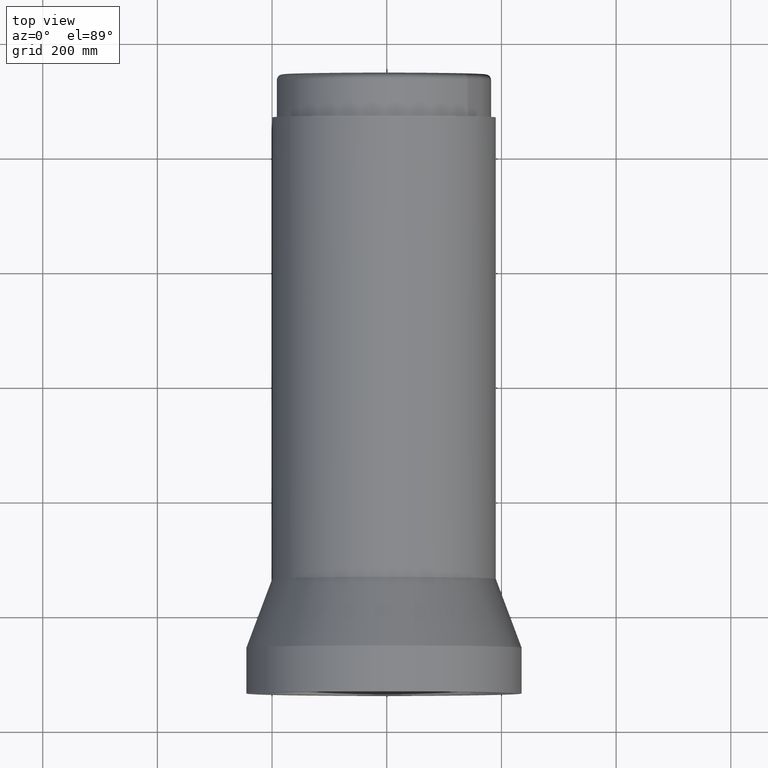
[diagram: clean part render]
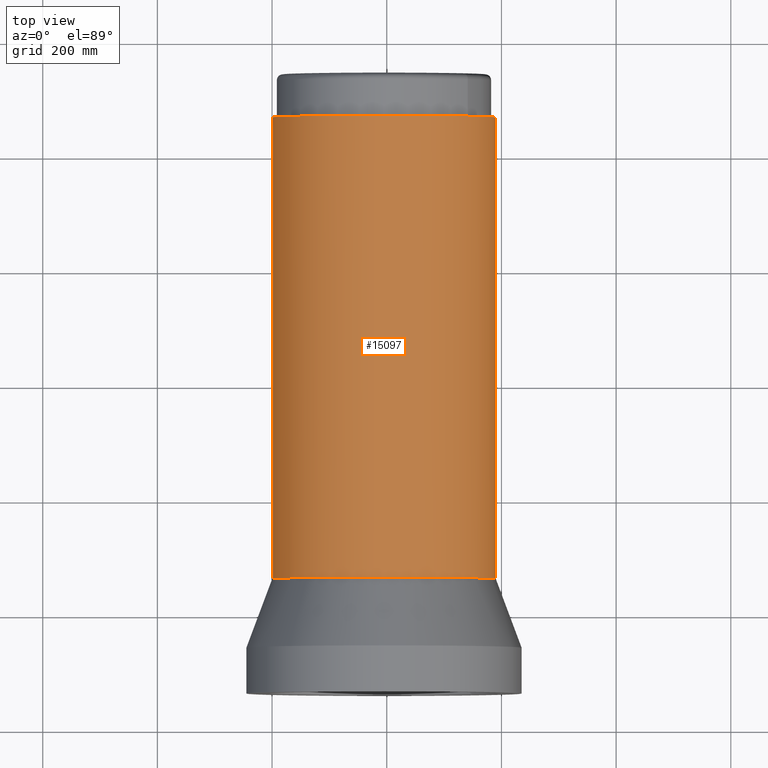
[diagram: same view with one face highlighted and labeled with its STEP entity id]
A machine part, top view. The second image highlights one B-rep face of the part: STEP entity #15097.
In plain terms, the highlighted face is a freeform B-spline surface patch.
Its self-contained STEP definition (entity closure, byte-faithful):
#12 = VERTEX_POINT ( 'NONE', #9011 ) ;
#44 = VERTEX_POINT ( 'NONE', #7015 ) ;
#60 = CARTESIAN_POINT ( 'NONE',  ( 193.3351085645446403, -25.53727302610858985, 119.9986782188536552 ) ) ;
#107 = CARTESIAN_POINT ( 'NONE',  ( 162.2377160660146558, -108.1854364932719363, 656.6663742804423691 ) ) ;
#284 = DIRECTION ( 'NONE',  ( -0.0000000000000000000, -0.0000000000000000000, -1.000000000000000000 ) ) ;
#288 = ORIENTED_EDGE ( 'NONE', *, *, #22798, .F. ) ;
#303 = CARTESIAN_POINT ( 'NONE',  ( -194.9999999999998863, -12.92493471206324251, 925.0000000000000000 ) ) ;
#335 = CARTESIAN_POINT ( 'NONE',  ( 169.3069428533937071, -97.58385061509292768, 925.0000000000000000 ) ) ;
#389 = CARTESIAN_POINT ( 'NONE',  ( 174.4137228824091324, -87.27570991755793273, 924.9999999999998863 ) ) ;
#391 = EDGE_CURVE ( 'NONE', #15020, #14075, #15054, .T. ) ;
#427 = EDGE_CURVE ( 'NONE', #14269, #20295, #3210, .T. ) ;
#430 = CARTESIAN_POINT ( 'NONE',  ( 25.51344762909901931, -193.3277596482296019, 119.9986901020441223 ) ) ;
#454 = CARTESIAN_POINT ( 'NONE',  ( 180.1562102967610883, -74.62314565065774730, 656.6663742804423691 ) ) ;
#509 = CARTESIAN_POINT ( 'NONE',  ( 90.36183959410642785, -172.8084356677540825, 924.9999999999995453 ) ) ;
#569 = CARTESIAN_POINT ( 'NONE',  ( 8.262826192151354737E-14, -194.9999999999998863, 119.9991228413271358 ) ) ;
#625 = CARTESIAN_POINT ( 'NONE',  ( 185.1464681176478280, -61.59100080165283941, 925.0000000000000000 ) ) ;
#687 = CARTESIAN_POINT ( 'NONE',  ( 1.140249082911127494E-13, -194.9999999999998863, 388.3327485608847383 ) ) ;
#714 = EDGE_LOOP ( 'NONE', ( #23321, #12299, #6399, #1229, #10354, #19353, #7367, #17252, #8752, #11295, #1420, #23147, #10731, #14768, #1814, #10219, #16823, #3656, #4052, #9910, #1766, #5776, #11611, #3314, #1400, #288 ) ) ;
#716 = B_SPLINE_CURVE_WITH_KNOTS ( 'NONE', 3,
 ( #18823, #14809, #779, #20244, #11366, #13027, #4077, #430, #11247, #5846, #14928, #8063 ),
 .UNSPECIFIED., .F., .F.,
 ( 4, 2, 2, 2, 2, 4 ),
 ( 0.3048963181111462584, 0.3187487939573280249, 0.3256750318804189082, 0.3291381508419644053, 0.3326012698035098469, 0.3603062214958733800 ),
 .UNSPECIFIED. ) ;
#756 = CARTESIAN_POINT ( 'NONE',  ( -47.09892131004382065, -189.2303835682536715, 119.9994120811596758 ) ) ;
#763 = CARTESIAN_POINT ( 'NONE',  ( 61.61049820773959595, -185.0440956707243743, 120.0000000000000426 ) ) ;
#779 = CARTESIAN_POINT ( 'NONE',  ( 9.256526504741147576, -194.8359045675325945, 119.9995874033414935 ) ) ;
#801 = CARTESIAN_POINT ( 'NONE',  ( 25.72558195958419347, -193.7158000312064416, 119.9991228413271358 ) ) ;
#818 = B_SPLINE_CURVE_WITH_KNOTS ( 'NONE', 3,
 ( #8808, #3279, #4929, #11882, #14128, #19331 ),
 .UNSPECIFIED., .F., .F.,
 ( 4, 2, 4 ),
 ( 1.122384978257759069, 1.143202322333380039, 1.164019666409000786 ),
 .UNSPECIFIED. ) ;
#875 = CARTESIAN_POINT ( 'NONE',  ( -63.29254464012590375, -184.4506268652064591, 120.0000000000000142 ) ) ;
#916 = CARTESIAN_POINT ( 'NONE',  ( -25.72558195958398741, -193.7158000312064132, 656.6663742804423691 ) ) ;
#947 = EDGE_CURVE ( 'NONE', #19752, #8541, #8388, .T. ) ;
#1005 = CARTESIAN_POINT ( 'NONE',  ( -194.9999999999999147, 0.0000000000000000000, 120.0000000000000853 ) ) ;
#1032 = CARTESIAN_POINT ( 'NONE',  ( 62.90635348239789693, -185.0094645203611776, 388.3327485608847383 ) ) ;
#1143 = CARTESIAN_POINT ( 'NONE',  ( -155.1684892786355192, -118.7870223714511297, 656.6663742804423691 ) ) ;
#1229 = ORIENTED_EDGE ( 'NONE', *, *, #14370, .T. ) ;
#1233 = EDGE_CURVE ( 'NONE', #15306, #2736, #19111, .T. ) ;
#1250 = CARTESIAN_POINT ( 'NONE',  ( -147.0251313126700552, -128.7465133500833474, 388.3327485608847383 ) ) ;
#1350 = CARTESIAN_POINT ( 'NONE',  ( -144.3178188628442911, -131.2216104379685078, 119.9995870775132403 ) ) ;
#1363 = CARTESIAN_POINT ( 'NONE',  ( -147.0251313126700552, -128.7465133500833474, 925.0000000000000000 ) ) ;
#1400 = ORIENTED_EDGE ( 'NONE', *, *, #15386, .T. ) ;
#1420 = ORIENTED_EDGE ( 'NONE', *, *, #14195, .T. ) ;
#1466 = CARTESIAN_POINT ( 'NONE',  ( 194.1287394765278691, -18.56521573741161291, 119.9989551607236677 ) ) ;
#1479 = CARTESIAN_POINT ( 'NONE',  ( -86.33993781891790320, -175.3029560731609422, 925.0000000000000000 ) ) ;
#1595 = CARTESIAN_POINT ( 'NONE',  ( -108.1854364932721069, -162.2377160660145705, 388.3327485608847383 ) ) ;
#1696 = CARTESIAN_POINT ( 'NONE',  ( 194.8356814324869219, -9.264662510297563713, 119.9995867226513440 ) ) ;
#1708 = CARTESIAN_POINT ( 'NONE',  ( -193.7158000312064701, -25.72558195958404781, 119.9991228413271358 ) ) ;
#1766 = ORIENTED_EDGE ( 'NONE', *, *, #9408, .T. ) ;
#1814 = ORIENTED_EDGE ( 'NONE', *, *, #13903, .F. ) ;
#1831 = CARTESIAN_POINT ( 'NONE',  ( -191.2180449645159115, -38.22073342447730937, 119.9991228413271358 ) ) ;
#1979 = CARTESIAN_POINT ( 'NONE',  ( 194.9999999999999432, -12.92493471206263145, 656.6663742804423691 ) ) ;
#2059 = CARTESIAN_POINT ( 'NONE',  ( -188.7202898978253529, -50.71588488937056383, 388.3327485608847383 ) ) ;
#2094 = CARTESIAN_POINT ( 'NONE',  ( 180.1562102967610883, -74.62314565065773309, 119.9991228413271358 ) ) ;
#2141 = EDGE_CURVE ( 'NONE', #14465, #12116, #21223, .T. ) ;
#2173 = CARTESIAN_POINT ( 'NONE',  ( -194.9999999999998863, -12.92493471206328159, 388.3327485608847383 ) ) ;
#2174 = AXIS2_PLACEMENT_3D ( 'NONE', #11617, #6440, #4778 ) ;
#2220 = CARTESIAN_POINT ( 'NONE',  ( -137.8858223313766587, -137.8858223313768576, 925.0000000000000000 ) ) ;
#2320 = CARTESIAN_POINT ( 'NONE',  ( 194.9999999999999432, -12.92493471206263145, 119.9991228413271358 ) ) ;
#2437 = CARTESIAN_POINT ( 'NONE',  ( 86.33993781891810215, -175.3029560731608001, 388.3327485608847383 ) ) ;
#2481 = DIRECTION ( 'NONE',  ( 1.000000000000000000, -3.552713678800500929E-15, 0.0000000000000000000 ) ) ;
#2538 = CARTESIAN_POINT ( 'NONE',  ( 93.43150471468410956, -171.1594400748903126, 925.0000000000000000 ) ) ;
#2542 = EDGE_CURVE ( 'NONE', #19393, #12, #3351, .T. ) ;
#2556 = CARTESIAN_POINT ( 'NONE',  ( 62.90635348239789693, -185.0094645203612060, 925.0000000000000000 ) ) ;
#2611 = CARTESIAN_POINT ( 'NONE',  ( 179.5215980335838708, -76.15704190830621201, 925.0000000000001137 ) ) ;
#2630 = CARTESIAN_POINT ( 'NONE',  ( -56.63361950999592409, -186.6029228938210451, 120.0000000000000426 ) ) ;
#2651 = DIRECTION ( 'NONE',  ( -0.0000000000000000000, -0.0000000000000000000, -1.000000000000000000 ) ) ;
#2672 = CARTESIAN_POINT ( 'NONE',  ( 12.92493471206342548, -194.9999999999998863, 388.3327485608847383 ) ) ;
#2736 = VERTEX_POINT ( 'NONE', #18928 ) ;
#2783 = CARTESIAN_POINT ( 'NONE',  ( 86.33993781891810215, -175.3029560731608285, 656.6663742804423691 ) ) ;
#2827 = EDGE_CURVE ( 'NONE', #44, #15306, #818, .T. ) ;
#2898 = CARTESIAN_POINT ( 'NONE',  ( 118.7870223714512292, -155.1684892786353771, 388.3327485608847383 ) ) ;
#3009 = CARTESIAN_POINT ( 'NONE',  ( -128.7465133500833190, -147.0251313126700836, 119.9991228413271358 ) ) ;
#3100 = CARTESIAN_POINT ( 'NONE',  ( -187.0940512997777034, -54.96195018588853287, 120.0000000000000853 ) ) ;
#3126 = CARTESIAN_POINT ( 'NONE',  ( -169.3069428533937071, -97.58385061509309821, 656.6663742804423691 ) ) ;
#3210 = B_SPLINE_CURVE_WITH_KNOTS ( 'NONE', 3,
 ( #13107, #5805, #15008, #11326, #20208, #18435, #16664, #509, #7679, #18553 ),
 .UNSPECIFIED., .F., .F.,
 ( 4, 2, 2, 2, 4 ),
 ( 0.3603062206240866261, 0.3810394667591594509, 0.3914060898266958355, 0.3965894013604640556, 0.4017727128942322201 ),
 .UNSPECIFIED. ) ;
#3241 = CARTESIAN_POINT ( 'NONE',  ( -169.3069428533937071, -97.58385061509309821, 388.3327485608847383 ) ) ;
#3279 = CARTESIAN_POINT ( 'NONE',  ( 174.5083409650623594, -87.29618561487897921, 120.0000000000000142 ) ) ;
#3314 = ORIENTED_EDGE ( 'NONE', *, *, #9991, .T. ) ;
#3331 = CARTESIAN_POINT ( 'NONE',  ( -171.1594400779239038, -93.43150470912652850, 120.0000000000000853 ) ) ;
#3351 = B_SPLINE_CURVE_WITH_KNOTS ( 'NONE', 3,
 ( #8627, #22596, #11822, #10272 ),
 .UNSPECIFIED., .F., .F.,
 ( 4, 4 ),
 ( 0.0000000000000000000, 0.8702710346066966363 ),
 .UNSPECIFIED. ) ;
#3360 = CARTESIAN_POINT ( 'NONE',  ( -86.33993781891796004, -175.3029560731608854, 388.3327485608847383 ) ) ;
#3564 = CARTESIAN_POINT ( 'NONE',  ( -182.8088495349882123, -68.21993883154942750, 120.0000000000000142 ) ) ;
#3634 = CARTESIAN_POINT ( 'NONE',  ( 193.7158000312065553, -25.72558195958402649, 925.0000000000003411 ) ) ;
#3653 = CARTESIAN_POINT ( 'NONE',  ( 54.96195018245225583, -187.0940513007872710, 120.0000000000000284 ) ) ;
#3656 = ORIENTED_EDGE ( 'NONE', *, *, #11037, .T. ) ;
#3681 = CARTESIAN_POINT ( 'NONE',  ( 137.8858223314000497, -137.8858223313535234, 925.0000000000000000 ) ) ;
#3751 = CARTESIAN_POINT ( 'NONE',  ( 191.2180449645159683, -38.22073342447725963, 656.6663742804425965 ) ) ;
#3763 = AXIS2_PLACEMENT_3D ( 'NONE', #17928, #5300, #7299 ) ;
#3813 = CARTESIAN_POINT ( 'NONE',  ( -61.65675381970486058, -185.1271501972363751, 925.0000000000000000 ) ) ;
#3952 = CARTESIAN_POINT ( 'NONE',  ( -193.7158000312064701, -25.72558195958404070, 656.6663742804423691 ) ) ;
#3984 = CARTESIAN_POINT ( 'NONE',  ( 193.7158000312065838, -25.72558195958402294, 388.3327485608849656 ) ) ;
#4042 = B_SPLINE_CURVE_WITH_KNOTS ( 'NONE', 3,
 ( #12609, #4121, #7646, #8944, #20054, #18168 ),
 .UNSPECIFIED., .F., .F.,
 ( 4, 2, 4 ),
 ( 0.4017727137420488148, 0.4295308067478217362, 0.4572888997535946021 ),
 .UNSPECIFIED. ) ;
#4052 = ORIENTED_EDGE ( 'NONE', *, *, #21432, .T. ) ;
#4077 = CARTESIAN_POINT ( 'NONE',  ( 23.19330243619597809, -193.6197821148929563, 119.9987540773463905 ) ) ;
#4099 = CARTESIAN_POINT ( 'NONE',  ( 180.1562102967610883, -74.62314565065773309, 388.3327485608847383 ) ) ;
#4121 = CARTESIAN_POINT ( 'NONE',  ( 101.6143288267182783, -166.6929296123237236, 119.9993416797762933 ) ) ;
#4155 = CARTESIAN_POINT ( 'NONE',  ( 172.8248410408989741, -90.38042416902366938, 925.0000000000002274 ) ) ;
#4171 = CARTESIAN_POINT ( 'NONE',  ( -54.96195018415097877, -187.0940513002881858, 120.0000000000000284 ) ) ;
#4216 = CARTESIAN_POINT ( 'NONE',  ( 128.7465133500834895, -147.0251313126698847, 388.3327485608847383 ) ) ;
#4334 = CARTESIAN_POINT ( 'NONE',  ( 108.1854364932722206, -162.2377160660144852, 388.3327485608847383 ) ) ;
#4447 = CARTESIAN_POINT ( 'NONE',  ( 74.62314565065800309, -180.1562102967610031, 925.0000000000000000 ) ) ;
#4519 = CARTESIAN_POINT ( 'NONE',  ( 54.96195018245225583, -187.0940513007872710, 120.0000000000000284 ) ) ;
#4560 = CARTESIAN_POINT ( 'NONE',  ( 118.7870223714512292, -155.1684892786353771, 119.9991228413271358 ) ) ;
#4674 = CARTESIAN_POINT ( 'NONE',  ( 97.58385061509322611, -169.3069428533935934, 925.0000000000000000 ) ) ;
#4778 = DIRECTION ( 'NONE',  ( 1.000000000000000000, 0.0000000000000000000, 0.0000000000000000000 ) ) ;
#4785 = CARTESIAN_POINT ( 'NONE',  ( -62.90635348239774771, -185.0094645203612629, 925.0000000000000000 ) ) ;
#4897 = CARTESIAN_POINT ( 'NONE',  ( -50.71588488937053540, -188.7202898978252961, 656.6663742804423691 ) ) ;
#4929 = CARTESIAN_POINT ( 'NONE',  ( 177.5066545203897590, -81.02112707426259419, 120.0000000000000426 ) ) ;
#4938 = CARTESIAN_POINT ( 'NONE',  ( -54.96195018415097877, -187.0940513002881858, 120.0000000000000284 ) ) ;
#5010 = CARTESIAN_POINT ( 'NONE',  ( -137.8858223313766871, -137.8858223313767155, 388.3327485608847383 ) ) ;
#5028 = CARTESIAN_POINT ( 'NONE',  ( 0.0000000000000000000, 0.0000000000000000000, 925.0000000000000000 ) ) ;
#5063 = B_SPLINE_CURVE_WITH_KNOTS ( 'NONE', 3,
 ( #10287, #23180, #17865, #13850, #17510, #16100, #23068, #1350, #17393, #6998 ),
 .UNSPECIFIED., .F., .F.,
 ( 4, 2, 2, 2, 4 ),
 ( 0.09696823367811849281, 0.1246739749189050284, 0.1316004102291016276, 0.1385268455392982268, 0.1523797161596913141 ),
 .UNSPECIFIED. ) ;
#5125 = CARTESIAN_POINT ( 'NONE',  ( -108.1854364932721069, -162.2377160660145705, 119.9991228413271358 ) ) ;
#5222 = DIRECTION ( 'NONE',  ( 1.000000000000000000, 0.0000000000000000000, 0.0000000000000000000 ) ) ;
#5241 = CARTESIAN_POINT ( 'NONE',  ( -74.62314565065781835, -180.1562102967610883, 656.6663742804423691 ) ) ;
#5300 = DIRECTION ( 'NONE',  ( -0.0000000000000000000, -0.0000000000000000000, -1.000000000000000000 ) ) ;
#5332 = CARTESIAN_POINT ( 'NONE',  ( -187.0940512997777034, -54.96195018588853287, 120.0000000000000853 ) ) ;
#5346 = CARTESIAN_POINT ( 'NONE',  ( -68.20879729613170639, -182.8130071411920028, 925.0000000000001137 ) ) ;
#5430 = B_SPLINE_CURVE_WITH_KNOTS ( 'NONE', 3,
 ( #23122, #6938, #14135, #21351, #11282, #18511, #16273, #14614, #5647, #12715, #16388, #7172 ),
 .UNSPECIFIED., .F., .F.,
 ( 4, 2, 2, 2, 2, 4 ),
 ( 0.1523797161596913141, 0.1801003718124852271, 0.1939606996388821281, 0.1974257815954813533, 0.2008908635520805785, 0.2078210274652790290 ),
 .UNSPECIFIED. ) ;
#5441 = CARTESIAN_POINT ( 'NONE',  ( 171.1594400752368017, -93.43150471404922541, 120.0000000000000284 ) ) ;
#5473 = CARTESIAN_POINT ( 'NONE',  ( 194.9999999999998579, -4.627118430835643892, 120.0000000000000000 ) ) ;
#5485 = CIRCLE ( 'NONE', #8475, 195.0000000000000000 ) ;
#5521 = CARTESIAN_POINT ( 'NONE',  ( 175.3029560731609138, -86.33993781891778951, 119.9991228413271358 ) ) ;
#5593 = CARTESIAN_POINT ( 'NONE',  ( -32.24489548432259767, -192.3719919994866530, 119.9986201546727216 ) ) ;
#5617 = VERTEX_POINT ( 'NONE', #6139 ) ;
#5647 = CARTESIAN_POINT ( 'NONE',  ( -100.5073914407638682, -167.1068911381335340, 119.9994116481641981 ) ) ;
#5749 = CARTESIAN_POINT ( 'NONE',  ( 162.2377160660146558, -108.1854364932719363, 925.0000000000000000 ) ) ;
#5771 = CARTESIAN_POINT ( 'NONE',  ( 194.9999999999999432, 1.319919086464045264E-13, 120.0000000000000284 ) ) ;
#5776 = ORIENTED_EDGE ( 'NONE', *, *, #2141, .T. ) ;
#5805 = CARTESIAN_POINT ( 'NONE',  ( 61.59282505754862314, -185.1459321601170416, 925.0000000000002274 ) ) ;
#5834 = CARTESIAN_POINT ( 'NONE',  ( -194.9999999999998863, 5.349025793206726084E-14, 925.0000000000000000 ) ) ;
#5846 = CARTESIAN_POINT ( 'NONE',  ( 37.05752881384106701, -191.6741095840558842, 119.9985858851737532 ) ) ;
#5857 = CIRCLE ( 'NONE', #6964, 195.0000000000000000 ) ;
#5869 = CARTESIAN_POINT ( 'NONE',  ( 193.7158000312065838, -25.72558195958402294, 119.9991228413271642 ) ) ;
#5876 = CARTESIAN_POINT ( 'NONE',  ( -93.43150456029300699, -171.1594401591684118, 925.0000000000000000 ) ) ;
#5944 = DIRECTION ( 'NONE',  ( 1.000000000000000000, 0.0000000000000000000, 0.0000000000000000000 ) ) ;
#5987 = CARTESIAN_POINT ( 'NONE',  ( 108.1854364932722206, -162.2377160660145137, 925.0000000000000000 ) ) ;
#6065 = CARTESIAN_POINT ( 'NONE',  ( 73.08473938552099014, -180.7941458071619820, 120.0000000000000284 ) ) ;
#6104 = CARTESIAN_POINT ( 'NONE',  ( 12.92493471206342548, -194.9999999999998863, 925.0000000000000000 ) ) ;
#6139 = CARTESIAN_POINT ( 'NONE',  ( -171.1594400748316218, -93.43150471479154362, 925.0000000000000000 ) ) ;
#6221 = CARTESIAN_POINT ( 'NONE',  ( -12.92493471206324074, -194.9999999999998863, 119.9991228413271358 ) ) ;
#6338 = CARTESIAN_POINT ( 'NONE',  ( 155.1684892786355761, -118.7870223714509308, 388.3327485608847383 ) ) ;
#6399 = ORIENTED_EDGE ( 'NONE', *, *, #11868, .T. ) ;
#6440 = DIRECTION ( 'NONE',  ( -0.0000000000000000000, -0.0000000000000000000, -1.000000000000000000 ) ) ;
#6448 = CARTESIAN_POINT ( 'NONE',  ( 137.8858223313768292, -137.8858223313764881, 119.9991228413271358 ) ) ;
#6562 = CARTESIAN_POINT ( 'NONE',  ( -50.71588488937053540, -188.7202898978253245, 388.3327485608847383 ) ) ;
#6654 = VERTEX_POINT ( 'NONE', #3331 ) ;
#6671 = CARTESIAN_POINT ( 'NONE',  ( -162.2377160660146274, -108.1854364932721069, 925.0000000000000000 ) ) ;
#6784 = CARTESIAN_POINT ( 'NONE',  ( -108.1854364932721069, -162.2377160660145705, 656.6663742804423691 ) ) ;
#6801 = DIRECTION ( 'NONE',  ( 1.000000000000000000, 0.0000000000000000000, 0.0000000000000000000 ) ) ;
#6897 = CARTESIAN_POINT ( 'NONE',  ( -97.58385061509309821, -169.3069428533936502, 656.6663742804423691 ) ) ;
#6938 = CARTESIAN_POINT ( 'NONE',  ( -131.3409356106617736, -144.4307090520851204, 120.0000000000000853 ) ) ;
#6964 = AXIS2_PLACEMENT_3D ( 'NONE', #7226, #284, #5222 ) ;
#6998 = CARTESIAN_POINT ( 'NONE',  ( -137.8858223313081623, -137.8858223314451834, 120.0000000000000853 ) ) ;
#7012 = CARTESIAN_POINT ( 'NONE',  ( -180.1562102967610883, -74.62314565065780414, 925.0000000000000000 ) ) ;
#7015 = CARTESIAN_POINT ( 'NONE',  ( 171.1594400752368017, -93.43150471404922541, 120.0000000000000284 ) ) ;
#7164 = CARTESIAN_POINT ( 'NONE',  ( 162.2377160660146558, -108.1854364932719363, 119.9991228413271358 ) ) ;
#7172 = CARTESIAN_POINT ( 'NONE',  ( -93.43150471116904043, -171.1594400768089770, 120.0000000000000853 ) ) ;
#7199 = CARTESIAN_POINT ( 'NONE',  ( 0.0000000000000000000, 0.0000000000000000000, 925.0000000000000000 ) ) ;
#7226 = CARTESIAN_POINT ( 'NONE',  ( 0.0000000000000000000, 0.0000000000000000000, 925.0000000000000000 ) ) ;
#7245 = CARTESIAN_POINT ( 'NONE',  ( -191.2180449645159115, -38.22073342447730226, 656.6663742804423691 ) ) ;
#7299 = DIRECTION ( 'NONE',  ( 1.000000000000000000, 0.0000000000000000000, 0.0000000000000000000 ) ) ;
#7367 = ORIENTED_EDGE ( 'NONE', *, *, #9576, .T. ) ;
#7399 = CARTESIAN_POINT ( 'NONE',  ( 194.9999999999999432, -12.92493471206263145, 925.0000000000000000 ) ) ;
#7482 = CARTESIAN_POINT ( 'NONE',  ( -185.0094645203612913, -62.90635348239770508, 119.9991228413271358 ) ) ;
#7514 = CARTESIAN_POINT ( 'NONE',  ( 169.3069428533937071, -97.58385061509292768, 388.3327485608847383 ) ) ;
#7552 = DIRECTION ( 'NONE',  ( -0.0000000000000000000, -0.0000000000000000000, -1.000000000000000000 ) ) ;
#7565 = CARTESIAN_POINT ( 'NONE',  ( 176.6796825434347795, -82.53637651872813308, 924.9999999999998863 ) ) ;
#7624 = CARTESIAN_POINT ( 'NONE',  ( 175.3029560731609138, -86.33993781891778951, 925.0000000000000000 ) ) ;
#7646 = CARTESIAN_POINT ( 'NONE',  ( 109.4066877643268185, -161.6818808501776346, 119.9985855656392033 ) ) ;
#7679 = CARTESIAN_POINT ( 'NONE',  ( 91.90351331848268046, -171.9934784783894202, 924.9999999999997726 ) ) ;
#7683 = CARTESIAN_POINT ( 'NONE',  ( -187.0940512992471270, -54.96195018769516594, 925.0000000000000000 ) ) ;
#7743 = CARTESIAN_POINT ( 'NONE',  ( 128.7465133500834895, -147.0251313126699131, 656.6663742804423691 ) ) ;
#7858 = CARTESIAN_POINT ( 'NONE',  ( 97.58385061509322611, -169.3069428533935650, 119.9991228413271358 ) ) ;
#7972 = CARTESIAN_POINT ( 'NONE',  ( -12.92493471206321942, -194.9999999999998863, 388.3327485608847383 ) ) ;
#8063 = CARTESIAN_POINT ( 'NONE',  ( 54.96195018245225583, -187.0940513007872710, 120.0000000000000284 ) ) ;
#8087 = CARTESIAN_POINT ( 'NONE',  ( 137.8858223313768292, -137.8858223313765166, 656.6663742804423691 ) ) ;
#8171 = CARTESIAN_POINT ( 'NONE',  ( -194.3266122658487234, -18.65474503142018392, 119.9987342697111643 ) ) ;
#8199 = CARTESIAN_POINT ( 'NONE',  ( 108.1854364932722206, -162.2377160660145137, 656.6663742804423691 ) ) ;
#8251 = CIRCLE ( 'NONE', #3763, 195.0000000000000000 ) ;
#8315 = CARTESIAN_POINT ( 'NONE',  ( -25.72558195958398741, -193.7158000312064416, 388.3327485608847383 ) ) ;
#8388 = B_SPLINE_CURVE_WITH_KNOTS ( 'NONE', 3,
 ( #4171, #9686, #16913, #756, #11225, #16678, #9453, #21768, #5593, #12777, #19989, #18332 ),
 .UNSPECIFIED., .F., .F.,
 ( 4, 2, 2, 2, 2, 4 ),
 ( 0.2494592198875985600, 0.2563888571655420501, 0.2598536758045137396, 0.2633184944434854846, 0.2771777689993724092, 0.3048963181111462584 ),
 .UNSPECIFIED. ) ;
#8399 = CARTESIAN_POINT ( 'NONE',  ( -191.6865497467572368, -36.97458685425203839, 119.9985860311195580 ) ) ;
#8424 = CARTESIAN_POINT ( 'NONE',  ( -97.58385061509309821, -169.3069428533936502, 388.3327485608847383 ) ) ;
#8475 = AXIS2_PLACEMENT_3D ( 'NONE', #20580, #22003, #5944 ) ;
#8537 = CARTESIAN_POINT ( 'NONE',  ( -38.22073342447727384, -191.2180449645158831, 388.3327485608847383 ) ) ;
#8541 = VERTEX_POINT ( 'NONE', #9684 ) ;
#8617 = CARTESIAN_POINT ( 'NONE',  ( 1.665334536937734811E-13, -195.0000000000000000, 925.0000000000000000 ) ) ;
#8618 = CIRCLE ( 'NONE', #22239, 195.0000000000000000 ) ;
#8627 = CARTESIAN_POINT ( 'NONE',  ( -195.0000000000000284, 5.349025793206729240E-14, 925.0000000000000000 ) ) ;
#8651 = CARTESIAN_POINT ( 'NONE',  ( -175.3029560731609138, -86.33993781891791741, 656.6663742804423691 ) ) ;
#8722 = CARTESIAN_POINT ( 'NONE',  ( 145.9073468841559702, -129.3890854325803161, 119.9994184064741773 ) ) ;
#8752 = ORIENTED_EDGE ( 'NONE', *, *, #10448, .T. ) ;
#8770 = CARTESIAN_POINT ( 'NONE',  ( -38.22073342447727384, -191.2180449645158546, 925.0000000000000000 ) ) ;
#8808 = CARTESIAN_POINT ( 'NONE',  ( 171.1594400752368017, -93.43150471404922541, 120.0000000000000284 ) ) ;
#8889 = CARTESIAN_POINT ( 'NONE',  ( -194.9999999999998863, -12.92493471206328159, 119.9991228413271358 ) ) ;
#8944 = CARTESIAN_POINT ( 'NONE',  ( 124.2270096365302123, -150.5937653372115506, 119.9987349063705864 ) ) ;
#9008 = CARTESIAN_POINT ( 'NONE',  ( -193.7158000312064701, -25.72558195958404070, 925.0000000000000000 ) ) ;
#9011 = CARTESIAN_POINT ( 'NONE',  ( -194.9999999999999147, 0.0000000000000000000, 120.0000000000000853 ) ) ;
#9042 = CARTESIAN_POINT ( 'NONE',  ( 169.3069428533937071, -97.58385061509292768, 656.6663742804423691 ) ) ;
#9156 = CARTESIAN_POINT ( 'NONE',  ( 162.2377160660146558, -108.1854364932719363, 388.3327485608847383 ) ) ;
#9177 = CARTESIAN_POINT ( 'NONE',  ( 194.9999999999999432, 1.318915958126658277E-13, 388.3328729837471656 ) ) ;
#9193 = CARTESIAN_POINT ( 'NONE',  ( 141.1619218765954997, -134.5351245502225481, 119.9998779815432783 ) ) ;
#9235 = CARTESIAN_POINT ( 'NONE',  ( -185.0094645203612913, -62.90635348239770508, 656.6663742804423691 ) ) ;
#9267 = CARTESIAN_POINT ( 'NONE',  ( 194.9999999999999432, 1.320558246087344401E-13, 925.0000000000000000 ) ) ;
#9377 = CARTESIAN_POINT ( 'NONE',  ( 191.2180449645159968, -38.22073342447725963, 388.3327485608849656 ) ) ;
#9408 = EDGE_CURVE ( 'NONE', #14269, #14465, #5485, .T. ) ;
#9453 = CARTESIAN_POINT ( 'NONE',  ( -42.54494592308782330, -190.3061427007212103, 119.9991032030481506 ) ) ;
#9498 = FACE_OUTER_BOUND ( 'NONE', #714, .T. ) ;
#9554 = CARTESIAN_POINT ( 'NONE',  ( 178.8340856192260162, -77.75791615808394397, 924.9999999999998863 ) ) ;
#9558 = CARTESIAN_POINT ( 'NONE',  ( -184.4564789979700095, -63.27555522918315489, 924.9999999999998863 ) ) ;
#9572 = CARTESIAN_POINT ( 'NONE',  ( -71.49442364383888560, -181.4538296229221430, 119.9999999999999858 ) ) ;
#9576 = EDGE_CURVE ( 'NONE', #9672, #19752, #20144, .T. ) ;
#9615 = CARTESIAN_POINT ( 'NONE',  ( 1.140249082911127494E-13, -194.9999999999998863, 656.6663742804423691 ) ) ;
#9672 = VERTEX_POINT ( 'NONE', #20106 ) ;
#9684 = CARTESIAN_POINT ( 'NONE',  ( -2.914335439641035919E-12, -194.9999999999999432, 120.0000000000000284 ) ) ;
#9686 = CARTESIAN_POINT ( 'NONE',  ( -52.73358441315699707, -187.7487344443848372, 119.9998359897488598 ) ) ;
#9734 = CARTESIAN_POINT ( 'NONE',  ( 38.22073342447745148, -191.2180449645158546, 119.9991228413271358 ) ) ;
#9763 = CIRCLE ( 'NONE', #10832, 195.0000000000000000 ) ;
#9788 = CARTESIAN_POINT ( 'NONE',  ( 182.8464144143290468, -68.12098061407094463, 925.0000000000001137 ) ) ;
#9806 = CARTESIAN_POINT ( 'NONE',  ( -54.96195018415097877, -187.0940513002881858, 120.0000000000000284 ) ) ;
#9808 = CARTESIAN_POINT ( 'NONE',  ( 81.12227420055585014, -177.4612784084038708, 120.0000000000000142 ) ) ;
#9847 = CARTESIAN_POINT ( 'NONE',  ( -25.72558195958398741, -193.7158000312064132, 925.0000000000000000 ) ) ;
#9910 = ORIENTED_EDGE ( 'NONE', *, *, #427, .F. ) ;
#9957 = CARTESIAN_POINT ( 'NONE',  ( 86.33993781891810215, -175.3029560731608001, 119.9991228413271358 ) ) ;
#9991 = EDGE_CURVE ( 'NONE', #23049, #19943, #19426, .T. ) ;
#10073 = CARTESIAN_POINT ( 'NONE',  ( -38.22073342447727384, -191.2180449645158546, 656.6663742804423691 ) ) ;
#10148 = B_SPLINE_CURVE_WITH_KNOTS ( 'NONE', 3,
 ( #4519, #16919, #763, #22241, #11348, #13591, #6065, #9808, #20465, #22356 ),
 .UNSPECIFIED., .F., .F.,
 ( 4, 2, 2, 2, 4 ),
 ( 0.9700718558169922900, 0.9804334234595929454, 0.9856142072808932175, 0.9907949911021934897, 1.011518126387394911 ),
 .UNSPECIFIED. ) ;
#10188 = CARTESIAN_POINT ( 'NONE',  ( -137.8858223313766871, -137.8858223313767155, 656.6663742804423691 ) ) ;
#10219 = ORIENTED_EDGE ( 'NONE', *, *, #21732, .T. ) ;
#10272 = CARTESIAN_POINT ( 'NONE',  ( -194.9999999999999147, 0.0000000000000000000, 120.0000000000000853 ) ) ;
#10287 = CARTESIAN_POINT ( 'NONE',  ( -171.1594400779239038, -93.43150470912652850, 120.0000000000000853 ) ) ;
#10300 = CARTESIAN_POINT ( 'NONE',  ( -97.58385061509309821, -169.3069428533936502, 925.0000000000000000 ) ) ;
#10354 = ORIENTED_EDGE ( 'NONE', *, *, #17716, .T. ) ;
#10377 = CARTESIAN_POINT ( 'NONE',  ( -171.1594400779239038, -93.43150470912652850, 120.0000000000000853 ) ) ;
#10410 = CARTESIAN_POINT ( 'NONE',  ( -162.2377160660146274, -108.1854364932721069, 388.3327485608847383 ) ) ;
#10448 = EDGE_CURVE ( 'NONE', #8541, #14012, #716, .T. ) ;
#10530 = CARTESIAN_POINT ( 'NONE',  ( -175.3029560731609138, -86.33993781891791741, 925.0000000000000000 ) ) ;
#10629 = CARTESIAN_POINT ( 'NONE',  ( 193.6270961680797598, -23.22096775999252216, 119.9987432769451630 ) ) ;
#10701 = CARTESIAN_POINT ( 'NONE',  ( 137.8858223314001066, -137.8858223313533244, 120.0000000000000284 ) ) ;
#10731 = ORIENTED_EDGE ( 'NONE', *, *, #2827, .T. ) ;
#10762 = CARTESIAN_POINT ( 'NONE',  ( -188.7202898978253529, -50.71588488937055672, 656.6663742804423691 ) ) ;
#10832 = AXIS2_PLACEMENT_3D ( 'NONE', #16822, #2651, #20246 ) ;
#10847 = CARTESIAN_POINT ( 'NONE',  ( -174.5006403971231066, -87.31029335998861995, 120.0000000000000142 ) ) ;
#11037 = EDGE_CURVE ( 'NONE', #15020, #14349, #5857, .T. ) ;
#11115 = CARTESIAN_POINT ( 'NONE',  ( -194.9999999999998863, -12.92493471206324251, 656.6663742804423691 ) ) ;
#11146 = EDGE_CURVE ( 'NONE', #23049, #12116, #12514, .T. ) ;
#11225 = CARTESIAN_POINT ( 'NONE',  ( -45.96475598585882949, -189.5091209667837120, 119.9993306886842248 ) ) ;
#11247 = CARTESIAN_POINT ( 'NONE',  ( 26.67052739294864949, -193.1715228295244344, 119.9986693431063713 ) ) ;
#11269 = CARTESIAN_POINT ( 'NONE',  ( 188.7202898978253813, -50.71588488937049277, 656.6663742804425965 ) ) ;
#11282 = CARTESIAN_POINT ( 'NONE',  ( -109.4078294367579502, -161.4836838390325795, 119.9987708836917051 ) ) ;
#11295 = ORIENTED_EDGE ( 'NONE', *, *, #16073, .T. ) ;
#11326 = CARTESIAN_POINT ( 'NONE',  ( 77.75576151285972060, -178.8602677554159470, 925.0000000000000000 ) ) ;
#11348 = CARTESIAN_POINT ( 'NONE',  ( 68.20399729744040940, -182.6914182717775361, 120.0000000000000284 ) ) ;
#11366 = CARTESIAN_POINT ( 'NONE',  ( 18.54156722129589951, -194.1309657601396168, 119.9989565325343932 ) ) ;
#11390 = CARTESIAN_POINT ( 'NONE',  ( 155.1684892786355761, -118.7870223714509308, 119.9991228413271358 ) ) ;
#11510 = CARTESIAN_POINT ( 'NONE',  ( 25.72558195958419347, -193.7158000312064416, 388.3327485608847383 ) ) ;
#11611 = ORIENTED_EDGE ( 'NONE', *, *, #11146, .F. ) ;
#11617 = CARTESIAN_POINT ( 'NONE',  ( 0.0000000000000000000, 0.0000000000000000000, 925.0000000000000000 ) ) ;
#11625 = CARTESIAN_POINT ( 'NONE',  ( 25.72558195958418992, -193.7158000312064416, 925.0000000000000000 ) ) ;
#11648 = B_SPLINE_CURVE_WITH_KNOTS ( 'NONE', 3,
 ( #14165, #19725, #16300, #9193, #21379, #14404, #8722, #19841, #19605, #16418, #21616, #5441 ),
 .UNSPECIFIED., .F., .F.,
 ( 4, 2, 2, 2, 2, 4 ),
 ( 0.4572888997535946021, 0.4607577591948101015, 0.4642266186360255453, 0.4711643375184565441, 0.4850397752833184306, 0.5127906508130423147 ),
 .UNSPECIFIED. ) ;
#11738 = CARTESIAN_POINT ( 'NONE',  ( 97.58385061509322611, -169.3069428533935934, 656.6663742804423691 ) ) ;
#11822 = CARTESIAN_POINT ( 'NONE',  ( -194.9999999999999432, -1.460600195860850688E-13, 388.3328619925370049 ) ) ;
#11853 = CARTESIAN_POINT ( 'NONE',  ( 12.92493471206342548, -194.9999999999998863, 656.6663742804423691 ) ) ;
#11868 = EDGE_CURVE ( 'NONE', #12, #19603, #22068, .T. ) ;
#11882 = CARTESIAN_POINT ( 'NONE',  ( 182.8172036616593346, -68.19754845350388450, 120.0000000000000426 ) ) ;
#11943 = CARTESIAN_POINT ( 'NONE',  ( -189.7198636324593792, -46.02438951129005318, 119.9993421853854301 ) ) ;
#11971 = CARTESIAN_POINT ( 'NONE',  ( -62.90635348239774771, -185.0094645203612629, 656.6663742804423691 ) ) ;
#12084 = CARTESIAN_POINT ( 'NONE',  ( -147.0251313126700552, -128.7465133500833474, 656.6663742804423691 ) ) ;
#12116 = VERTEX_POINT ( 'NONE', #14631 ) ;
#12199 = CARTESIAN_POINT ( 'NONE',  ( -155.1684892786355192, -118.7870223714511297, 388.3327485608847383 ) ) ;
#12299 = ORIENTED_EDGE ( 'NONE', *, *, #2542, .T. ) ;
#12316 = CARTESIAN_POINT ( 'NONE',  ( -118.7870223714511297, -155.1684892786354624, 656.6663742804423691 ) ) ;
#12384 = CARTESIAN_POINT ( 'NONE',  ( -187.0940512997777034, -54.96195018588853287, 120.0000000000000853 ) ) ;
#12431 = CARTESIAN_POINT ( 'NONE',  ( -169.3069428533937071, -97.58385061509309821, 119.9991228413271358 ) ) ;
#12472 = B_SPLINE_CURVE_WITH_KNOTS ( 'NONE', 3,
 ( #5332, #21387, #3564, #21627, #10847, #10377 ),
 .UNSPECIFIED., .F., .F.,
 ( 4, 2, 4 ),
 ( 0.6651024646574931198, 0.6859209809645965272, 0.7067394972716998236 ),
 .UNSPECIFIED. ) ;
#12514 = B_SPLINE_CURVE_WITH_KNOTS ( 'NONE', 3,
 ( #21521, #17856, #19981, #5346, #3813, #23172 ),
 .UNSPECIFIED., .F., .F.,
 ( 4, 2, 4 ),
 ( 0.2078210272225310129, 0.2286401233082537288, 0.2494592193939764724 ),
 .UNSPECIFIED. ) ;
#12556 = CARTESIAN_POINT ( 'NONE',  ( -194.9999999999998863, 2.209361156246807145E-14, 119.9991228413271358 ) ) ;
#12567 = VERTEX_POINT ( 'NONE', #10701 ) ;
#12609 = CARTESIAN_POINT ( 'NONE',  ( 93.43150470761504778, -171.1594400787490429, 120.0000000000000284 ) ) ;
#12673 = CARTESIAN_POINT ( 'NONE',  ( -193.7158000312064701, -25.72558195958404781, 388.3327485608847383 ) ) ;
#12706 = CARTESIAN_POINT ( 'NONE',  ( 155.1684892786355761, -118.7870223714509308, 925.0000000000000000 ) ) ;
#12715 = CARTESIAN_POINT ( 'NONE',  ( -97.49548530711496142, -168.8938448643673951, 119.9996617160645656 ) ) ;
#12740 = DIRECTION ( 'NONE',  ( -0.0000000000000000000, -0.0000000000000000000, -1.000000000000000000 ) ) ;
#12767 = CARTESIAN_POINT ( 'NONE',  ( -177.4604896140266419, -81.12341857830540448, 924.9999999999998863 ) ) ;
#12777 = CARTESIAN_POINT ( 'NONE',  ( -18.47031018339941255, -194.3452866498363960, 119.9987442799180428 ) ) ;
#12824 = CARTESIAN_POINT ( 'NONE',  ( 194.9999999999999432, 1.320558246087344401E-13, 656.6663742804423691 ) ) ;
#12901 = CARTESIAN_POINT ( 'NONE',  ( -191.2180449645159115, -38.22073342447730226, 925.0000000000000000 ) ) ;
#13027 = CARTESIAN_POINT ( 'NONE',  ( 22.02930757909167525, -193.7556521419365652, 119.9987973642469683 ) ) ;
#13107 = CARTESIAN_POINT ( 'NONE',  ( 54.96195017888602763, -187.0940513018349520, 925.0000000000000000 ) ) ;
#13126 = CARTESIAN_POINT ( 'NONE',  ( -87.36398415362127423, -174.4713338291880120, 120.0000000000000284 ) ) ;
#13167 = CARTESIAN_POINT ( 'NONE',  ( 62.90635348239789693, -185.0094645203612060, 656.6663742804423691 ) ) ;
#13284 = CARTESIAN_POINT ( 'NONE',  ( 38.22073342447745148, -191.2180449645158546, 656.6663742804423691 ) ) ;
#13402 = CARTESIAN_POINT ( 'NONE',  ( 147.0251313126701689, -128.7465133500831485, 388.3327485608847383 ) ) ;
#13517 = CARTESIAN_POINT ( 'NONE',  ( 128.7465133500834895, -147.0251313126698847, 119.9991228413271358 ) ) ;
#13591 = CARTESIAN_POINT ( 'NONE',  ( 71.46564001139543620, -181.4403208914927745, 120.0000000000000568 ) ) ;
#13636 = CARTESIAN_POINT ( 'NONE',  ( 50.71588488937072015, -188.7202898978252676, 925.0000000000000000 ) ) ;
#13750 = CARTESIAN_POINT ( 'NONE',  ( -50.71588488937053540, -188.7202898978252961, 925.0000000000000000 ) ) ;
#13850 = CARTESIAN_POINT ( 'NONE',  ( -154.7600418553845714, -118.6589797925823007, 119.9986784079195843 ) ) ;
#13862 = CARTESIAN_POINT ( 'NONE',  ( -97.58385061509309821, -169.3069428533936502, 119.9991228413271358 ) ) ;
#13903 = EDGE_CURVE ( 'NONE', #21035, #2736, #20905, .T. ) ;
#13941 = CARTESIAN_POINT ( 'NONE',  ( 195.0000000000000000, 0.0000000000000000000, 925.0000000000000000 ) ) ;
#13979 = CARTESIAN_POINT ( 'NONE',  ( -128.7465133500833190, -147.0251313126700836, 388.3327485608847383 ) ) ;
#14012 = VERTEX_POINT ( 'NONE', #3653 ) ;
#14075 = VERTEX_POINT ( 'NONE', #22066 ) ;
#14092 = CARTESIAN_POINT ( 'NONE',  ( -162.2377160660146274, -108.1854364932721069, 656.6663742804423691 ) ) ;
#14128 = CARTESIAN_POINT ( 'NONE',  ( 185.1294219246785246, -61.64902146867520116, 120.0000000000000995 ) ) ;
#14135 = CARTESIAN_POINT ( 'NONE',  ( -124.3596381778267528, -150.4854058237222887, 119.9987442553170496 ) ) ;
#14165 = CARTESIAN_POINT ( 'NONE',  ( 137.8858223314001066, -137.8858223313533244, 120.0000000000000284 ) ) ;
#14195 = EDGE_CURVE ( 'NONE', #15701, #12567, #4042, .T. ) ;
#14211 = CARTESIAN_POINT ( 'NONE',  ( -155.1684892786355192, -118.7870223714511297, 119.9991228413271358 ) ) ;
#14269 = VERTEX_POINT ( 'NONE', #23342 ) ;
#14349 = VERTEX_POINT ( 'NONE', #3681 ) ;
#14370 = EDGE_CURVE ( 'NONE', #19603, #6654, #12472, .T. ) ;
#14402 = DIRECTION ( 'NONE',  ( 1.000000000000000000, 5.329070518200751394E-15, 0.0000000000000000000 ) ) ;
#14404 = CARTESIAN_POINT ( 'NONE',  ( 144.3515232782734756, -131.1226450005309516, 119.9995959741811902 ) ) ;
#14429 = CARTESIAN_POINT ( 'NONE',  ( -181.4564376677774931, -71.48793623830916033, 925.0000000000001137 ) ) ;
#14465 = VERTEX_POINT ( 'NONE', #8617 ) ;
#14547 = CARTESIAN_POINT ( 'NONE',  ( -185.0169122416632206, -61.61755267146545378, 925.0000000000000000 ) ) ;
#14558 = CARTESIAN_POINT ( 'NONE',  ( 191.6726267329316613, -37.06186922549016316, 119.9985867737882472 ) ) ;
#14570 = CARTESIAN_POINT ( 'NONE',  ( -191.2180449645159115, -38.22073342447730937, 388.3327485608847383 ) ) ;
#14604 = CARTESIAN_POINT ( 'NONE',  ( 188.7202898978254098, -50.71588488937049988, 119.9991228413271642 ) ) ;
#14614 = CARTESIAN_POINT ( 'NONE',  ( -101.5073317159437494, -166.5014413520896426, 119.9993301941901649 ) ) ;
#14631 = CARTESIAN_POINT ( 'NONE',  ( -54.96195018111247066, -187.0940513011808832, 925.0000000000000000 ) ) ;
#14686 = CARTESIAN_POINT ( 'NONE',  ( -188.7202898978253529, -50.71588488937056383, 119.9991228413271358 ) ) ;
#14768 = ORIENTED_EDGE ( 'NONE', *, *, #1233, .T. ) ;
#14800 = CARTESIAN_POINT ( 'NONE',  ( -185.0094645203612913, -62.90635348239770508, 388.3327485608847383 ) ) ;
#14809 = CARTESIAN_POINT ( 'NONE',  ( 4.623937553697532010, -194.9999999999999716, 120.0000000000001137 ) ) ;
#14831 = CARTESIAN_POINT ( 'NONE',  ( 180.1562102967610883, -74.62314565065774730, 925.0000000000000000 ) ) ;
#14928 = CARTESIAN_POINT ( 'NONE',  ( 46.10139520090299214, -189.6972397311049008, 119.9993478530916633 ) ) ;
#14951 = CARTESIAN_POINT ( 'NONE',  ( 147.0251313126701689, -128.7465133500831769, 925.0000000000000000 ) ) ;
#15005 = B_SPLINE_CURVE_WITH_KNOTS ( 'NONE', 3,
 ( #7683, #22107, #18559, #14547, #9558, #21875, #14429, #12767, #21640, #19979 ),
 .UNSPECIFIED., .F., .F.,
 ( 4, 2, 2, 2, 4 ),
 ( 0.05550916096239795483, 0.06069154502615323188, 0.06587392908990850893, 0.07623869721741902139, 0.09696823347244004632 ),
 .UNSPECIFIED. ) ;
#15008 = CARTESIAN_POINT ( 'NONE',  ( 68.12080378244689882, -182.8462487128518887, 924.9999999999998863 ) ) ;
#15020 = VERTEX_POINT ( 'NONE', #16264 ) ;
#15054 = B_SPLINE_CURVE_WITH_KNOTS ( 'NONE', 3,
 ( #16545, #4155, #389, #7565, #22102, #9554, #2611, #9788, #625, #21982 ),
 .UNSPECIFIED., .F., .F.,
 ( 4, 2, 2, 2, 4 ),
 ( 0.5127906498184915396, 0.5231537279954928676, 0.5283352670839935872, 0.5335168061724943067, 0.5542429625264970738 ),
 .UNSPECIFIED. ) ;
#15072 = CARTESIAN_POINT ( 'NONE',  ( 74.62314565065800309, -180.1562102967610031, 656.6663742804423691 ) ) ;
#15097 = ADVANCED_FACE ( 'NONE', ( #9498 ), #15396, .T. ) ;
#15187 = CARTESIAN_POINT ( 'NONE',  ( 137.8858223313768292, -137.8858223313765166, 925.0000000000000000 ) ) ;
#15305 = CARTESIAN_POINT ( 'NONE',  ( 137.8858223313768292, -137.8858223313764881, 388.3327485608847383 ) ) ;
#15306 = VERTEX_POINT ( 'NONE', #16834 ) ;
#15386 = EDGE_CURVE ( 'NONE', #19943, #5617, #18383, .T. ) ;
#15396 = B_SPLINE_SURFACE_WITH_KNOTS ( 'NONE', 3, 3, ( 
 ( #9267, #12824, #19801, #18029 ),
 ( #7399, #1979, #19920, #2320 ),
 ( #3634, #20269, #3984, #5869 ),
 ( #18375, #3751, #9377, #21930 ),
 ( #16605, #11269, #16493, #14604 ),
 ( #21696, #18147, #18263, #20035 ),
 ( #14831, #454, #4099, #2094 ),
 ( #7624, #22045, #18498, #5521 ),
 ( #335, #9042, #7514, #23346 ),
 ( #5749, #107, #9156, #7164 ),
 ( #12706, #16379, #6338, #11390 ),
 ( #14951, #22625, #13402, #20625 ),
 ( #15187, #8087, #15305, #6448 ),
 ( #18957, #7743, #4216, #13517 ),
 ( #16959, #20737, #2898, #4560 ),
 ( #5987, #8199, #4334, #22162 ),
 ( #4674, #11738, #17073, #7858 ),
 ( #22512, #2783, #2437, #9957 ),
 ( #4447, #15072, #17187, #22280 ),
 ( #2556, #13167, #1032, #15420 ),
 ( #13636, #20387, #16842, #19071 ),
 ( #18616, #13284, #20849, #9734 ),
 ( #11625, #18846, #11510, #801 ),
 ( #6104, #11853, #2672, #22395 ),
 ( #16727, #9615, #687, #569 ),
 ( #20504, #18735, #7972, #6221 ),
 ( #9847, #916, #8315, #22740 ),
 ( #8770, #10073, #8537, #19299 ),
 ( #13750, #4897, #6562, #20968 ),
 ( #4785, #11971, #19185, #21309 ),
 ( #21190, #5241, #17642, #17299 ),
 ( #1479, #23080, #3360, #21423 ),
 ( #10300, #6897, #8424, #13862 ),
 ( #22966, #6784, #1595, #5125 ),
 ( #17523, #12316, #19528, #17757 ),
 ( #15645, #19649, #13979, #3009 ),
 ( #15990, #10188, #5010, #17408 ),
 ( #1363, #12084, #1250, #15760 ),
 ( #22855, #1143, #12199, #14211 ),
 ( #6671, #14092, #10410, #19412 ),
 ( #21081, #3126, #3241, #12431 ),
 ( #10530, #8651, #15873, #23192 ),
 ( #7012, #15535, #16112, #18343 ),
 ( #17876, #9235, #14800, #7482 ),
 ( #17994, #10762, #2059, #14686 ),
 ( #12901, #7245, #14570, #1831 ),
 ( #9008, #3952, #12673, #1708 ),
 ( #303, #11115, #2173, #8889 ),
 ( #5834, #16229, #21897, #12556 ) ),
 .UNSPECIFIED., .F., .F., .F.,
 ( 4, 3, 3, 3, 3, 3, 3, 3, 3, 3, 3, 3, 3, 3, 3, 3, 4 ),
 ( 4, 4 ),
 ( 0.0000000000000000000, 0.03125000000000000694, 0.06250000000000001388, 0.09375000000000002776, 0.1250000000000000278, 0.1562500000000000555, 0.1875000000000000555, 0.2187500000000000555, 0.2500000000000000555, 0.2812500000000001110, 0.3125000000000001110, 0.3437500000000001110, 0.3750000000000001110, 0.4062500000000001110, 0.4375000000000001110, 0.4687500000000001110, 0.5000000000000001110 ),
 ( 0.0000000000000000000, 0.8702712185499166253 ),
 .UNSPECIFIED. ) ;
#15420 = CARTESIAN_POINT ( 'NONE',  ( 62.90635348239789693, -185.0094645203611776, 119.9991228413271358 ) ) ;
#15527 = CARTESIAN_POINT ( 'NONE',  ( 93.43150470761504778, -171.1594400787490429, 120.0000000000000284 ) ) ;
#15535 = CARTESIAN_POINT ( 'NONE',  ( -180.1562102967610883, -74.62314565065780414, 656.6663742804423691 ) ) ;
#15645 = CARTESIAN_POINT ( 'NONE',  ( -128.7465133500833190, -147.0251313126700836, 925.0000000000000000 ) ) ;
#15701 = VERTEX_POINT ( 'NONE', #15527 ) ;
#15760 = CARTESIAN_POINT ( 'NONE',  ( -147.0251313126700552, -128.7465133500833474, 119.9991228413271358 ) ) ;
#15873 = CARTESIAN_POINT ( 'NONE',  ( -175.3029560731609138, -86.33993781891791741, 388.3327485608847383 ) ) ;
#15976 = CARTESIAN_POINT ( 'NONE',  ( 194.9999999999999432, 1.319919086464045264E-13, 120.0000000000000284 ) ) ;
#15990 = CARTESIAN_POINT ( 'NONE',  ( -137.8858223313766871, -137.8858223313767155, 925.0000000000000000 ) ) ;
#16073 = EDGE_CURVE ( 'NONE', #14012, #15701, #10148, .T. ) ;
#16100 = CARTESIAN_POINT ( 'NONE',  ( -150.3890544201890123, -124.1521807035709770, 119.9989559015564424 ) ) ;
#16112 = CARTESIAN_POINT ( 'NONE',  ( -180.1562102967610883, -74.62314565065780414, 388.3327485608847383 ) ) ;
#16216 = CARTESIAN_POINT ( 'NONE',  ( 189.6975804994294776, -46.10023531714452361, 119.9993477677228384 ) ) ;
#16229 = CARTESIAN_POINT ( 'NONE',  ( -194.9999999999998863, 5.349025793206726084E-14, 656.6663742804423691 ) ) ;
#16264 = CARTESIAN_POINT ( 'NONE',  ( 171.1594400743200310, -93.43150471572884896, 925.0000000000000000 ) ) ;
#16273 = CARTESIAN_POINT ( 'NONE',  ( -103.4990867842616495, -165.2707778090057218, 119.9991756757396075 ) ) ;
#16300 = CARTESIAN_POINT ( 'NONE',  ( 139.5366658548406349, -136.2200176065258859, 119.9999710484032107 ) ) ;
#16379 = CARTESIAN_POINT ( 'NONE',  ( 155.1684892786355761, -118.7870223714509308, 656.6663742804423691 ) ) ;
#16388 = CARTESIAN_POINT ( 'NONE',  ( -95.47143829926746150, -170.0459632881251366, 119.9998358843454724 ) ) ;
#16418 = CARTESIAN_POINT ( 'NONE',  ( 161.6936598317570599, -109.3892870852907890, 119.9985864779882263 ) ) ;
#16493 = CARTESIAN_POINT ( 'NONE',  ( 188.7202898978254098, -50.71588488937049988, 388.3327485608849656 ) ) ;
#16545 = CARTESIAN_POINT ( 'NONE',  ( 171.1594400743200310, -93.43150471572884896, 925.0000000000000000 ) ) ;
#16564 = CARTESIAN_POINT ( 'NONE',  ( -93.43150471116904043, -171.1594400768089770, 120.0000000000000853 ) ) ;
#16605 = CARTESIAN_POINT ( 'NONE',  ( 188.7202898978253813, -50.71588488937049277, 925.0000000000003411 ) ) ;
#16664 = CARTESIAN_POINT ( 'NONE',  ( 87.25082759396886445, -174.3997693881210296, 925.0000000000000000 ) ) ;
#16678 = CARTESIAN_POINT ( 'NONE',  ( -43.68832207787809097, -190.0468858454541987, 119.9991762745952428 ) ) ;
#16727 = CARTESIAN_POINT ( 'NONE',  ( 1.140249082911127494E-13, -194.9999999999998863, 925.0000000000000000 ) ) ;
#16771 = CARTESIAN_POINT ( 'NONE',  ( 0.0000000000000000000, 0.0000000000000000000, 925.0000000000000000 ) ) ;
#16802 = CARTESIAN_POINT ( 'NONE',  ( -68.24082231319592040, -182.7028088420921392, 120.0000000000000284 ) ) ;
#16822 = CARTESIAN_POINT ( 'NONE',  ( 0.0000000000000000000, 0.0000000000000000000, 925.0000000000000000 ) ) ;
#16823 = ORIENTED_EDGE ( 'NONE', *, *, #391, .F. ) ;
#16834 = CARTESIAN_POINT ( 'NONE',  ( 187.0940513004677257, -54.96195018353980544, 119.9999999999999147 ) ) ;
#16842 = CARTESIAN_POINT ( 'NONE',  ( 50.71588488937071304, -188.7202898978252676, 388.3327485608847383 ) ) ;
#16913 = CARTESIAN_POINT ( 'NONE',  ( -50.48936140370260972, -188.3648473227484033, 119.9996619573095273 ) ) ;
#16919 = CARTESIAN_POINT ( 'NONE',  ( 58.29454627135000067, -186.1149506011578580, 120.0000000000000284 ) ) ;
#16959 = CARTESIAN_POINT ( 'NONE',  ( 118.7870223714512292, -155.1684892786354055, 925.0000000000000000 ) ) ;
#17073 = CARTESIAN_POINT ( 'NONE',  ( 97.58385061509322611, -169.3069428533935650, 388.3327485608847383 ) ) ;
#17187 = CARTESIAN_POINT ( 'NONE',  ( 74.62314565065800309, -180.1562102967609746, 388.3327485608847383 ) ) ;
#17252 = ORIENTED_EDGE ( 'NONE', *, *, #947, .T. ) ;
#17299 = CARTESIAN_POINT ( 'NONE',  ( -74.62314565065780414, -180.1562102967610883, 119.9991228413271358 ) ) ;
#17393 = CARTESIAN_POINT ( 'NONE',  ( -141.1565050345546695, -134.6151396282020016, 120.0000000000000995 ) ) ;
#17408 = CARTESIAN_POINT ( 'NONE',  ( -137.8858223313766871, -137.8858223313767155, 119.9991228413271358 ) ) ;
#17510 = CARTESIAN_POINT ( 'NONE',  ( -153.3259160485858956, -120.5065398844264024, 119.9987437707151514 ) ) ;
#17523 = CARTESIAN_POINT ( 'NONE',  ( -118.7870223714511297, -155.1684892786354624, 925.0000000000000000 ) ) ;
#17642 = CARTESIAN_POINT ( 'NONE',  ( -74.62314565065786098, -180.1562102967610599, 388.3327485608847383 ) ) ;
#17716 = EDGE_CURVE ( 'NONE', #6654, #20626, #5063, .T. ) ;
#17757 = CARTESIAN_POINT ( 'NONE',  ( -118.7870223714511297, -155.1684892786354624, 119.9991228413271358 ) ) ;
#17856 = CARTESIAN_POINT ( 'NONE',  ( -87.30328388393981243, -174.5044664406856896, 924.9999999999997726 ) ) ;
#17865 = CARTESIAN_POINT ( 'NONE',  ( -161.7388666533513231, -109.3281202567379182, 119.9985863497469438 ) ) ;
#17876 = CARTESIAN_POINT ( 'NONE',  ( -185.0094645203612913, -62.90635348239770508, 925.0000000000000000 ) ) ;
#17928 = CARTESIAN_POINT ( 'NONE',  ( 0.0000000000000000000, 0.0000000000000000000, 925.0000000000000000 ) ) ;
#17994 = CARTESIAN_POINT ( 'NONE',  ( -188.7202898978253529, -50.71588488937055672, 925.0000000000000000 ) ) ;
#18029 = CARTESIAN_POINT ( 'NONE',  ( 194.9999999999999432, 1.319919089743185809E-13, 119.9991228413271358 ) ) ;
#18147 = CARTESIAN_POINT ( 'NONE',  ( 185.0094645203612913, -62.90635348239771929, 656.6663742804423691 ) ) ;
#18168 = CARTESIAN_POINT ( 'NONE',  ( 137.8858223314001066, -137.8858223313533244, 120.0000000000000284 ) ) ;
#18184 = CARTESIAN_POINT ( 'NONE',  ( -137.8858223313081623, -137.8858223314451834, 120.0000000000000853 ) ) ;
#18263 = CARTESIAN_POINT ( 'NONE',  ( 185.0094645203612913, -62.90635348239769087, 388.3327485608847383 ) ) ;
#18283 = CARTESIAN_POINT ( 'NONE',  ( 194.9999999999999432, 1.320558246087344401E-13, 656.6664364918735828 ) ) ;
#18332 = CARTESIAN_POINT ( 'NONE',  ( -2.914335439641035919E-12, -194.9999999999999432, 120.0000000000000284 ) ) ;
#18335 = CARTESIAN_POINT ( 'NONE',  ( -58.30158717066084506, -186.0885506074588136, 120.0000000000000142 ) ) ;
#18343 = CARTESIAN_POINT ( 'NONE',  ( -180.1562102967610883, -74.62314565065780414, 119.9991228413271358 ) ) ;
#18375 = CARTESIAN_POINT ( 'NONE',  ( 191.2180449645159683, -38.22073342447725963, 925.0000000000003411 ) ) ;
#18383 = CIRCLE ( 'NONE', #2174, 195.0000000000000000 ) ;
#18435 = CARTESIAN_POINT ( 'NONE',  ( 85.67912940584140813, -175.1772556499979885, 925.0000000000001137 ) ) ;
#18498 = CARTESIAN_POINT ( 'NONE',  ( 175.3029560731609138, -86.33993781891778951, 388.3327485608847383 ) ) ;
#18511 = CARTESIAN_POINT ( 'NONE',  ( -104.4906160652351446, -164.6457089828428479, 119.9991026568977190 ) ) ;
#18553 = CARTESIAN_POINT ( 'NONE',  ( 93.43150471468410956, -171.1594400748903126, 925.0000000000000000 ) ) ;
#18559 = CARTESIAN_POINT ( 'NONE',  ( -186.0903649765470789, -58.29569165839251355, 924.9999999999998863 ) ) ;
#18574 = CARTESIAN_POINT ( 'NONE',  ( -81.12228721811540311, -177.4607939330599606, 120.0000000000000568 ) ) ;
#18581 = AXIS2_PLACEMENT_3D ( 'NONE', #5028, #22985, #6801 ) ;
#18616 = CARTESIAN_POINT ( 'NONE',  ( 38.22073342447745148, -191.2180449645158546, 925.0000000000000000 ) ) ;
#18735 = CARTESIAN_POINT ( 'NONE',  ( -12.92493471206321765, -194.9999999999998863, 656.6663742804423691 ) ) ;
#18805 = CARTESIAN_POINT ( 'NONE',  ( -61.63003462852066150, -185.0127874658717531, 120.0000000000000000 ) ) ;
#18823 = CARTESIAN_POINT ( 'NONE',  ( -2.914335439641035919E-12, -194.9999999999999432, 120.0000000000000284 ) ) ;
#18846 = CARTESIAN_POINT ( 'NONE',  ( 25.72558195958418992, -193.7158000312064416, 656.6663742804423691 ) ) ;
#18928 = CARTESIAN_POINT ( 'NONE',  ( 194.9999999999999432, 1.319919086464045264E-13, 120.0000000000000284 ) ) ;
#18957 = CARTESIAN_POINT ( 'NONE',  ( 128.7465133500834895, -147.0251313126699131, 925.0000000000000000 ) ) ;
#19071 = CARTESIAN_POINT ( 'NONE',  ( 50.71588488937071304, -188.7202898978252676, 119.9991228413271358 ) ) ;
#19111 = B_SPLINE_CURVE_WITH_KNOTS ( 'NONE', 3,
 ( #19637, #16216, #14558, #60, #10629, #1466, #19873, #1696, #5473, #15976 ),
 .UNSPECIFIED., .F., .F.,
 ( 4, 2, 2, 2, 4 ),
 ( 0.5542429638521464419, 0.5819496898550367003, 0.5888763713557592094, 0.5958030528564818296, 0.6096564158579269588 ),
 .UNSPECIFIED. ) ;
#19185 = CARTESIAN_POINT ( 'NONE',  ( -62.90635348239776192, -185.0094645203612629, 388.3327485608847383 ) ) ;
#19299 = CARTESIAN_POINT ( 'NONE',  ( -38.22073342447727384, -191.2180449645158831, 119.9991228413271358 ) ) ;
#19331 = CARTESIAN_POINT ( 'NONE',  ( 187.0940513004677257, -54.96195018353980544, 119.9999999999999147 ) ) ;
#19353 = ORIENTED_EDGE ( 'NONE', *, *, #22295, .T. ) ;
#19393 = VERTEX_POINT ( 'NONE', #21907 ) ;
#19412 = CARTESIAN_POINT ( 'NONE',  ( -162.2377160660146274, -108.1854364932721069, 119.9991228413271358 ) ) ;
#19426 = CIRCLE ( 'NONE', #22456, 195.0000000000000000 ) ;
#19528 = CARTESIAN_POINT ( 'NONE',  ( -118.7870223714511297, -155.1684892786354624, 388.3327485608847383 ) ) ;
#19567 = EDGE_CURVE ( 'NONE', #20947, #19393, #8618, .T. ) ;
#19603 = VERTEX_POINT ( 'NONE', #12384 ) ;
#19605 = CARTESIAN_POINT ( 'NONE',  ( 153.3786684724785516, -120.5055471719388152, 119.9986968641035787 ) ) ;
#19637 = CARTESIAN_POINT ( 'NONE',  ( 187.0940513004677257, -54.96195018353980544, 119.9999999999999147 ) ) ;
#19649 = CARTESIAN_POINT ( 'NONE',  ( -128.7465133500833190, -147.0251313126700836, 656.6663742804423691 ) ) ;
#19725 = CARTESIAN_POINT ( 'NONE',  ( 138.7144644201302697, -137.0571802426228487, 120.0000000000001990 ) ) ;
#19752 = VERTEX_POINT ( 'NONE', #4938 ) ;
#19801 = CARTESIAN_POINT ( 'NONE',  ( 194.9999999999999432, 1.318915957365150524E-13, 388.3327485608847383 ) ) ;
#19841 = CARTESIAN_POINT ( 'NONE',  ( 150.4721769635565067, -124.1164638693110618, 119.9989356553471822 ) ) ;
#19873 = CARTESIAN_POINT ( 'NONE',  ( 194.3371327617424811, -16.23697196841368751, 119.9991018363693769 ) ) ;
#19920 = CARTESIAN_POINT ( 'NONE',  ( 194.9999999999999432, -12.92493471206263145, 388.3327485608847383 ) ) ;
#19943 = VERTEX_POINT ( 'NONE', #2220 ) ;
#19979 = CARTESIAN_POINT ( 'NONE',  ( -171.1594400748316218, -93.43150471479154362, 925.0000000000000000 ) ) ;
#19981 = CARTESIAN_POINT ( 'NONE',  ( -81.03206163116352911, -177.5016635673638632, 925.0000000000001137 ) ) ;
#19989 = CARTESIAN_POINT ( 'NONE',  ( -9.252413907466872089, -194.9999999999997442, 120.0000000000001137 ) ) ;
#20035 = CARTESIAN_POINT ( 'NONE',  ( 185.0094645203612913, -62.90635348239769087, 119.9991228413271358 ) ) ;
#20054 = CARTESIAN_POINT ( 'NONE',  ( 131.2549615089123449, -144.5166831538433030, 120.0000000000001990 ) ) ;
#20106 = CARTESIAN_POINT ( 'NONE',  ( -93.43150471116904043, -171.1594400768089770, 120.0000000000000853 ) ) ;
#20144 = B_SPLINE_CURVE_WITH_KNOTS ( 'NONE', 3,
 ( #16564, #13126, #18574, #9572, #16802, #875, #18805, #18335, #2630, #9806 ),
 .UNSPECIFIED., .F., .F.,
 ( 4, 2, 2, 2, 4 ),
 ( 0.8175810908055631820, 0.8383184324296019119, 0.8486871032416212213, 0.8538714386476309315, 0.8590557740536406417 ),
 .UNSPECIFIED. ) ;
#20208 = CARTESIAN_POINT ( 'NONE',  ( 80.94119014601776030, -177.4420083385450937, 924.9999999999998863 ) ) ;
#20244 = CARTESIAN_POINT ( 'NONE',  ( 16.21865048185433267, -194.3386212707846425, 119.9991030533687137 ) ) ;
#20246 = DIRECTION ( 'NONE',  ( 1.000000000000000000, 0.0000000000000000000, 0.0000000000000000000 ) ) ;
#20269 = CARTESIAN_POINT ( 'NONE',  ( 193.7158000312065553, -25.72558195958402649, 656.6663742804425965 ) ) ;
#20292 = CARTESIAN_POINT ( 'NONE',  ( 195.0000000000000000, 0.0000000000000000000, 925.0000000000000000 ) ) ;
#20295 = VERTEX_POINT ( 'NONE', #2538 ) ;
#20347 = CARTESIAN_POINT ( 'NONE',  ( -187.0940512992471270, -54.96195018769516594, 925.0000000000000000 ) ) ;
#20387 = CARTESIAN_POINT ( 'NONE',  ( 50.71588488937072015, -188.7202898978252676, 656.6663742804423691 ) ) ;
#20465 = CARTESIAN_POINT ( 'NONE',  ( 87.36733263354155099, -174.4695060956657358, 120.0000000000000142 ) ) ;
#20504 = CARTESIAN_POINT ( 'NONE',  ( -12.92493471206321765, -194.9999999999998863, 925.0000000000000000 ) ) ;
#20580 = CARTESIAN_POINT ( 'NONE',  ( 0.0000000000000000000, 0.0000000000000000000, 925.0000000000000000 ) ) ;
#20625 = CARTESIAN_POINT ( 'NONE',  ( 147.0251313126701689, -128.7465133500831485, 119.9991228413271358 ) ) ;
#20626 = VERTEX_POINT ( 'NONE', #18184 ) ;
#20737 = CARTESIAN_POINT ( 'NONE',  ( 118.7870223714512292, -155.1684892786354055, 656.6663742804423691 ) ) ;
#20849 = CARTESIAN_POINT ( 'NONE',  ( 38.22073342447745148, -191.2180449645158546, 388.3327485608847383 ) ) ;
#20851 = EDGE_CURVE ( 'NONE', #12567, #44, #11648, .T. ) ;
#20905 = B_SPLINE_CURVE_WITH_KNOTS ( 'NONE', 3,
 ( #20292, #18283, #9177, #5771 ),
 .UNSPECIFIED., .F., .F.,
 ( 4, 4 ),
 ( 0.0000000000000000000, 0.8702710167831126942 ),
 .UNSPECIFIED. ) ;
#20947 = VERTEX_POINT ( 'NONE', #20347 ) ;
#20968 = CARTESIAN_POINT ( 'NONE',  ( -50.71588488937053540, -188.7202898978253245, 119.9991228413271358 ) ) ;
#21035 = VERTEX_POINT ( 'NONE', #13941 ) ;
#21081 = CARTESIAN_POINT ( 'NONE',  ( -169.3069428533937071, -97.58385061509309821, 925.0000000000000000 ) ) ;
#21190 = CARTESIAN_POINT ( 'NONE',  ( -74.62314565065781835, -180.1562102967610883, 925.0000000000000000 ) ) ;
#21223 = CIRCLE ( 'NONE', #18581, 195.0000000000000000 ) ;
#21309 = CARTESIAN_POINT ( 'NONE',  ( -62.90635348239773350, -185.0094645203612629, 119.9991228413271358 ) ) ;
#21351 = CARTESIAN_POINT ( 'NONE',  ( -113.2284703001059256, -158.8269928076173585, 119.9986201685263580 ) ) ;
#21379 = CARTESIAN_POINT ( 'NONE',  ( 141.9658197893142244, -133.6865589287868374, 119.9998138619238830 ) ) ;
#21387 = CARTESIAN_POINT ( 'NONE',  ( -185.1248966019940951, -61.66442445263777472, 120.0000000000000000 ) ) ;
#21423 = CARTESIAN_POINT ( 'NONE',  ( -86.33993781891788899, -175.3029560731609422, 119.9991228413271358 ) ) ;
#21432 = EDGE_CURVE ( 'NONE', #14349, #20295, #8251, .T. ) ;
#21521 = CARTESIAN_POINT ( 'NONE',  ( -93.43150456029300699, -171.1594401591684118, 925.0000000000000000 ) ) ;
#21616 = CARTESIAN_POINT ( 'NONE',  ( 166.6997289014295234, -101.6018722589864325, 119.9993426819254694 ) ) ;
#21627 = CARTESIAN_POINT ( 'NONE',  ( -177.4967265678536137, -81.04287546077931381, 120.0000000000000000 ) ) ;
#21640 = CARTESIAN_POINT ( 'NONE',  ( -174.4701205324025182, -87.36620696170321310, 925.0000000000000000 ) ) ;
#21696 = CARTESIAN_POINT ( 'NONE',  ( 185.0094645203612913, -62.90635348239771929, 925.0000000000000000 ) ) ;
#21732 = EDGE_CURVE ( 'NONE', #21035, #14075, #9763, .T. ) ;
#21768 = CARTESIAN_POINT ( 'NONE',  ( -36.82768388442731577, -191.5484505365649852, 119.9987710215244050 ) ) ;
#21875 = CARTESIAN_POINT ( 'NONE',  ( -182.7066459673719976, -68.23079604840449974, 925.0000000000001137 ) ) ;
#21897 = CARTESIAN_POINT ( 'NONE',  ( -194.9999999999998863, 2.209361156246807145E-14, 388.3327485608847383 ) ) ;
#21907 = CARTESIAN_POINT ( 'NONE',  ( -195.0000000000000284, 5.349025793206729240E-14, 925.0000000000000000 ) ) ;
#21930 = CARTESIAN_POINT ( 'NONE',  ( 191.2180449645159968, -38.22073342447725963, 119.9991228413271642 ) ) ;
#21982 = CARTESIAN_POINT ( 'NONE',  ( 187.0940513012560871, -54.96195018085670370, 925.0000000000000000 ) ) ;
#22003 = DIRECTION ( 'NONE',  ( -0.0000000000000000000, -0.0000000000000000000, -1.000000000000000000 ) ) ;
#22045 = CARTESIAN_POINT ( 'NONE',  ( 175.3029560731609138, -86.33993781891778951, 656.6663742804423691 ) ) ;
#22066 = CARTESIAN_POINT ( 'NONE',  ( 187.0940513012560871, -54.96195018085670370, 925.0000000000000000 ) ) ;
#22068 = B_SPLINE_CURVE_WITH_KNOTS ( 'NONE', 3,
 ( #1005, #22942, #8171, #8399, #11943, #3100 ),
 .UNSPECIFIED., .F., .F.,
 ( 4, 2, 4 ),
 ( 0.0000000000000000000, 0.02775458048863229873, 0.05550916097726458359 ),
 .UNSPECIFIED. ) ;
#22102 = CARTESIAN_POINT ( 'NONE',  ( 177.4134789781451786, -80.94685272941907783, 924.9999999999997726 ) ) ;
#22107 = CARTESIAN_POINT ( 'NONE',  ( -186.6037550045378168, -56.63078722825473221, 924.9999999999997726 ) ) ;
#22162 = CARTESIAN_POINT ( 'NONE',  ( 108.1854364932722206, -162.2377160660144852, 119.9991228413271358 ) ) ;
#22239 = AXIS2_PLACEMENT_3D ( 'NONE', #7199, #12740, #14402 ) ;
#22241 = CARTESIAN_POINT ( 'NONE',  ( 66.55892088617257230, -183.2972105975972283, 120.0000000000000142 ) ) ;
#22280 = CARTESIAN_POINT ( 'NONE',  ( 74.62314565065800309, -180.1562102967609746, 119.9991228413271358 ) ) ;
#22295 = EDGE_CURVE ( 'NONE', #20626, #9672, #5430, .T. ) ;
#22356 = CARTESIAN_POINT ( 'NONE',  ( 93.43150470761504778, -171.1594400787490429, 120.0000000000000284 ) ) ;
#22395 = CARTESIAN_POINT ( 'NONE',  ( 12.92493471206338285, -194.9999999999998863, 119.9991228413271358 ) ) ;
#22456 = AXIS2_PLACEMENT_3D ( 'NONE', #16771, #7552, #2481 ) ;
#22512 = CARTESIAN_POINT ( 'NONE',  ( 86.33993781891810215, -175.3029560731608285, 925.0000000000000000 ) ) ;
#22596 = CARTESIAN_POINT ( 'NONE',  ( -194.9999999999998863, -1.146633732164859047E-13, 656.6664309962685593 ) ) ;
#22625 = CARTESIAN_POINT ( 'NONE',  ( 147.0251313126701689, -128.7465133500831769, 656.6663742804423691 ) ) ;
#22740 = CARTESIAN_POINT ( 'NONE',  ( -25.72558195958398741, -193.7158000312064416, 119.9991228413271358 ) ) ;
#22798 = EDGE_CURVE ( 'NONE', #20947, #5617, #15005, .T. ) ;
#22855 = CARTESIAN_POINT ( 'NONE',  ( -155.1684892786355192, -118.7870223714511297, 925.0000000000000000 ) ) ;
#22942 = CARTESIAN_POINT ( 'NONE',  ( -194.9999999999999716, -9.384707791501304186, 120.0000000000000142 ) ) ;
#22966 = CARTESIAN_POINT ( 'NONE',  ( -108.1854364932721069, -162.2377160660145705, 925.0000000000000000 ) ) ;
#22985 = DIRECTION ( 'NONE',  ( -0.0000000000000000000, -0.0000000000000000000, -1.000000000000000000 ) ) ;
#23049 = VERTEX_POINT ( 'NONE', #5876 ) ;
#23068 = CARTESIAN_POINT ( 'NONE',  ( -148.8922117390993094, -125.9430880284231051, 119.9991024666572770 ) ) ;
#23080 = CARTESIAN_POINT ( 'NONE',  ( -86.33993781891790320, -175.3029560731609422, 656.6663742804423691 ) ) ;
#23122 = CARTESIAN_POINT ( 'NONE',  ( -137.8858223313081623, -137.8858223314451834, 120.0000000000000853 ) ) ;
#23147 = ORIENTED_EDGE ( 'NONE', *, *, #20851, .T. ) ;
#23172 = CARTESIAN_POINT ( 'NONE',  ( -54.96195018111247066, -187.0940513011808832, 925.0000000000000000 ) ) ;
#23180 = CARTESIAN_POINT ( 'NONE',  ( -166.7346013151177999, -101.5379846161696520, 119.9993478217800771 ) ) ;
#23192 = CARTESIAN_POINT ( 'NONE',  ( -175.3029560731609138, -86.33993781891791741, 119.9991228413271358 ) ) ;
#23321 = ORIENTED_EDGE ( 'NONE', *, *, #19567, .T. ) ;
#23342 = CARTESIAN_POINT ( 'NONE',  ( 54.96195017888602763, -187.0940513018349520, 925.0000000000000000 ) ) ;
#23346 = CARTESIAN_POINT ( 'NONE',  ( 169.3069428533937071, -97.58385061509292768, 119.9991228413271358 ) ) ;